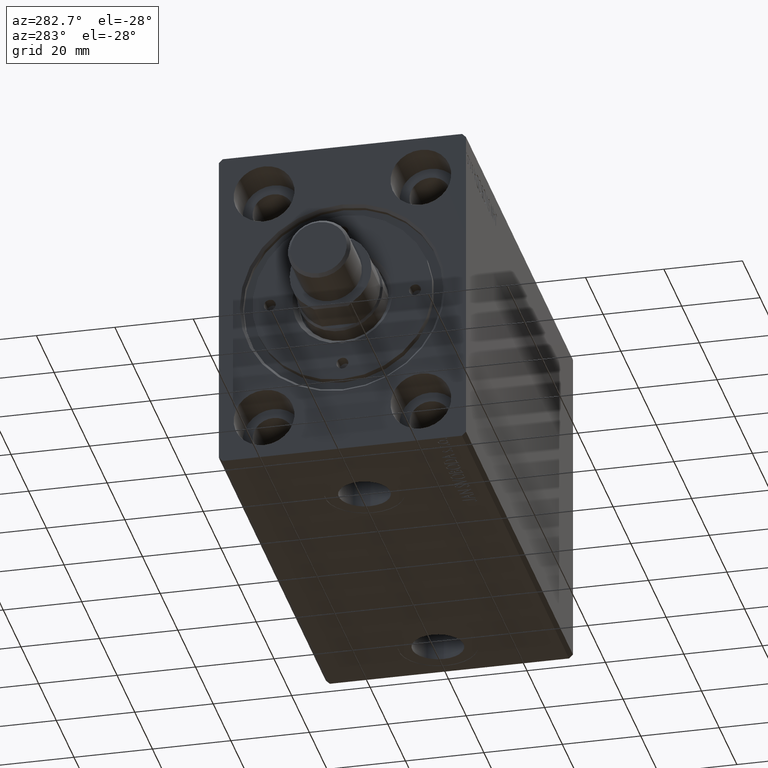
[diagram: clean part render]
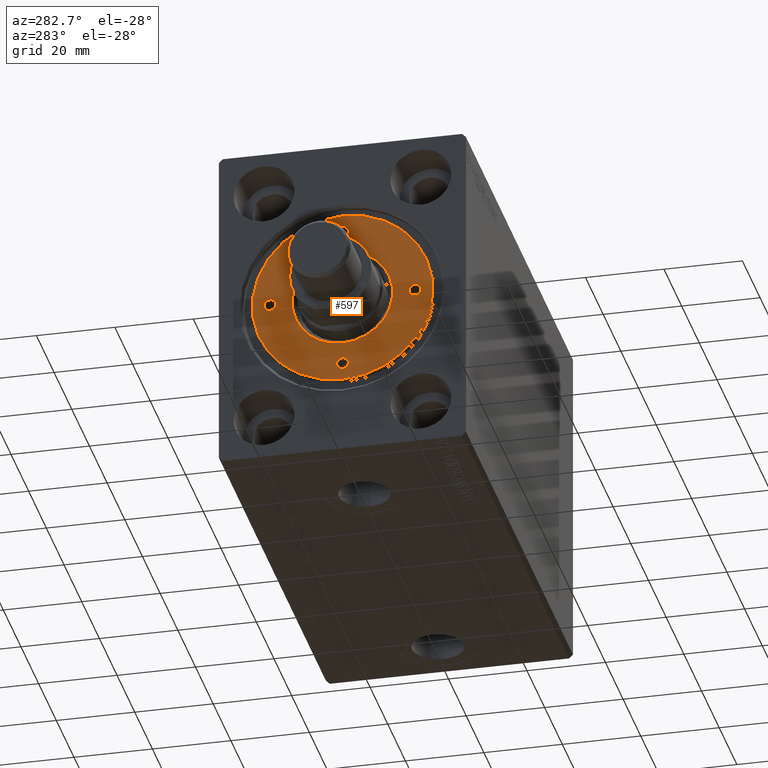
[diagram: same view with one face highlighted and labeled with its STEP entity id]
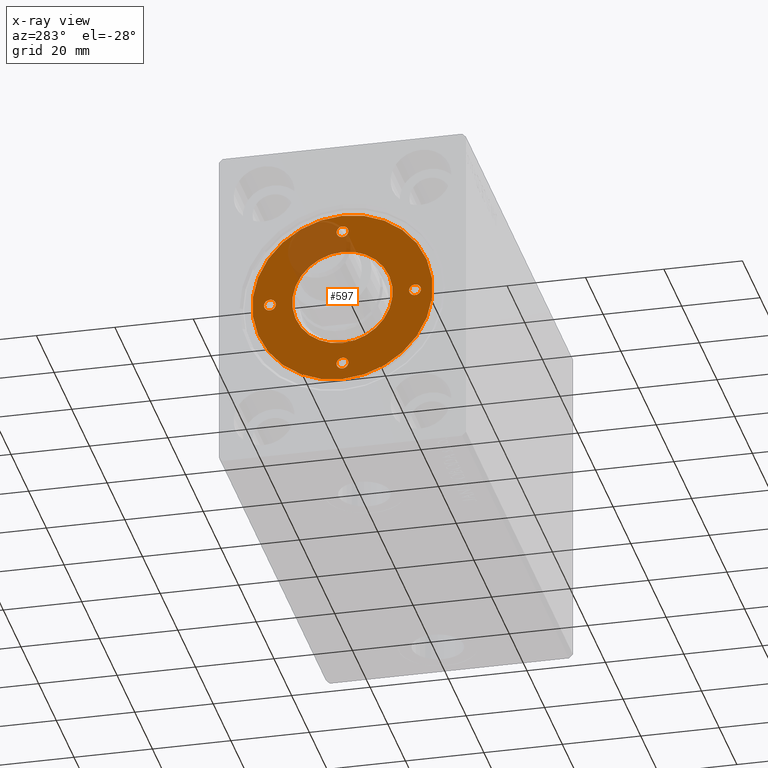
[diagram: x-ray of the same camera — body ghosted, the highlighted face saturated]
A machine part, auxiliary view. The second image highlights one B-rep face of the part: STEP entity #597.
The next image is the same camera in x-ray: the body ghosted, the highlighted face saturated — about 14% of this face is hidden behind the body in this view.
In plain terms, the highlighted planar face has unit normal (-1, 0, 0).
Its self-contained STEP definition (entity closure, byte-faithful):
#290 = EDGE_CURVE ( 'NONE', #16721, #43791, #33486, .T. ) ;
#294 = CARTESIAN_POINT ( 'NONE',  ( 19.99999999999999645, 0.000000000000000000, 11.79999999999999893 ) ) ;
#576 = VERTEX_POINT ( 'NONE', #26769 ) ;
#597 = ADVANCED_FACE ( 'NONE', ( #40709, #34166, #44309, #13497, #10117, #27204 ), #23834, .T. ) ;
#1057 = DIRECTION ( 'NONE',  ( 0.000000000000000000, 0.000000000000000000, 1.000000000000000000 ) ) ;
#1846 = CARTESIAN_POINT ( 'NONE',  ( 18.50000000000000000, 0.000000000000000000, 11.79999999999999893 ) ) ;
#2329 = CIRCLE ( 'NONE', #8090, 1.499999999999996891 ) ;
#3090 = EDGE_CURVE ( 'NONE', #7106, #6467, #29853, .T. ) ;
#3399 = CARTESIAN_POINT ( 'NONE',  ( -18.50000000000000000, 0.000000000000000000, 11.79999999999999893 ) ) ;
#3568 = AXIS2_PLACEMENT_3D ( 'NONE', #3399, #16220, #20470 ) ;
#3685 = ORIENTED_EDGE ( 'NONE', *, *, #38734, .F. ) ;
#3741 = CIRCLE ( 'NONE', #31749, 12.79999999999997407 ) ;
#4074 = DIRECTION ( 'NONE',  ( 1.000000000000000000, 0.000000000000000000, 0.000000000000000000 ) ) ;
#4100 = CIRCLE ( 'NONE', #43632, 23.00000000000000000 ) ;
#4816 = DIRECTION ( 'NONE',  ( 1.000000000000000000, 0.000000000000000000, 0.000000000000000000 ) ) ;
#5817 = ORIENTED_EDGE ( 'NONE', *, *, #13083, .F. ) ;
#5825 = VERTEX_POINT ( 'NONE', #15581 ) ;
#5912 = VERTEX_POINT ( 'NONE', #22753 ) ;
#6467 = VERTEX_POINT ( 'NONE', #16351 ) ;
#7065 = AXIS2_PLACEMENT_3D ( 'NONE', #25715, #18296, #4816 ) ;
#7106 = VERTEX_POINT ( 'NONE', #12156 ) ;
#7784 = CIRCLE ( 'NONE', #7065, 1.499999999999996891 ) ;
#8090 = AXIS2_PLACEMENT_3D ( 'NONE', #30405, #23654, #39381 ) ;
#8665 = CARTESIAN_POINT ( 'NONE',  ( 17.00000000000000000, 1.836970198721027222E-16, 11.79999999999999893 ) ) ;
#8823 = DIRECTION ( 'NONE',  ( -0.000000000000000000, -0.000000000000000000, 1.000000000000000000 ) ) ;
#8912 = EDGE_CURVE ( 'NONE', #24363, #5912, #7784, .T. ) ;
#9504 = ORIENTED_EDGE ( 'NONE', *, *, #39146, .F. ) ;
#9751 = EDGE_LOOP ( 'NONE', ( #10997, #23547 ) ) ;
#10117 = FACE_BOUND ( 'NONE', #19658, .T. ) ;
#10216 = CIRCLE ( 'NONE', #36793, 1.499999999999997780 ) ;
#10709 = ORIENTED_EDGE ( 'NONE', *, *, #44359, .T. ) ;
#10955 = CIRCLE ( 'NONE', #15999, 23.00000000000000000 ) ;
#10997 = ORIENTED_EDGE ( 'NONE', *, *, #38204, .F. ) ;
#11246 = CARTESIAN_POINT ( 'NONE',  ( 1.499999999999996891, -18.50000000000000000, 11.79999999999999893 ) ) ;
#12156 = CARTESIAN_POINT ( 'NONE',  ( -12.79999999999997407, 1.567547902908609029E-15, 11.79999999999999893 ) ) ;
#12351 = CIRCLE ( 'NONE', #38949, 1.499999999999996891 ) ;
#12571 = ORIENTED_EDGE ( 'NONE', *, *, #36099, .F. ) ;
#12743 = CARTESIAN_POINT ( 'NONE',  ( -1.499999999999996891, -18.50000000000000000, 11.79999999999999893 ) ) ;
#13083 = EDGE_CURVE ( 'NONE', #43791, #16721, #38771, .T. ) ;
#13187 = EDGE_CURVE ( 'NONE', #5825, #27137, #31569, .T. ) ;
#13497 = FACE_BOUND ( 'NONE', #33099, .T. ) ;
#13871 = ORIENTED_EDGE ( 'NONE', *, *, #290, .F. ) ;
#14094 = AXIS2_PLACEMENT_3D ( 'NONE', #28653, #36273, #15823 ) ;
#14591 = DIRECTION ( 'NONE',  ( -0.000000000000000000, -0.000000000000000000, 1.000000000000000000 ) ) ;
#15422 = DIRECTION ( 'NONE',  ( 1.000000000000000000, 0.000000000000000000, 0.000000000000000000 ) ) ;
#15581 = CARTESIAN_POINT ( 'NONE',  ( -19.99999999999999645, 1.836970198721027222E-16, 11.79999999999999893 ) ) ;
#15823 = DIRECTION ( 'NONE',  ( 1.000000000000000000, 0.000000000000000000, 0.000000000000000000 ) ) ;
#15880 = CARTESIAN_POINT ( 'NONE',  ( 0.000000000000000000, 0.000000000000000000, 11.79999999999999893 ) ) ;
#15999 = AXIS2_PLACEMENT_3D ( 'NONE', #15880, #43101, #23053 ) ;
#16220 = DIRECTION ( 'NONE',  ( -0.000000000000000000, -0.000000000000000000, 1.000000000000000000 ) ) ;
#16351 = CARTESIAN_POINT ( 'NONE',  ( 12.79999999999997407, 0.000000000000000000, 11.79999999999999893 ) ) ;
#16721 = VERTEX_POINT ( 'NONE', #294 ) ;
#17952 = DIRECTION ( 'NONE',  ( 1.000000000000000000, 0.000000000000000000, 0.000000000000000000 ) ) ;
#18174 = DIRECTION ( 'NONE',  ( 1.000000000000000000, 0.000000000000000000, 0.000000000000000000 ) ) ;
#18294 = EDGE_LOOP ( 'NONE', ( #13871, #5817 ) ) ;
#18296 = DIRECTION ( 'NONE',  ( -0.000000000000000000, -0.000000000000000000, 1.000000000000000000 ) ) ;
#19012 = EDGE_LOOP ( 'NONE', ( #3685, #37065 ) ) ;
#19421 = DIRECTION ( 'NONE',  ( 1.000000000000000000, 0.000000000000000000, 0.000000000000000000 ) ) ;
#19531 = ORIENTED_EDGE ( 'NONE', *, *, #20280, .T. ) ;
#19658 = EDGE_LOOP ( 'NONE', ( #20967, #22824 ) ) ;
#20280 = EDGE_CURVE ( 'NONE', #576, #29122, #4100, .T. ) ;
#20470 = DIRECTION ( 'NONE',  ( 1.000000000000000000, 0.000000000000000000, 0.000000000000000000 ) ) ;
#20703 = CARTESIAN_POINT ( 'NONE',  ( 0.000000000000000000, -18.50000000000000000, 11.79999999999999893 ) ) ;
#20967 = ORIENTED_EDGE ( 'NONE', *, *, #38200, .T. ) ;
#22226 = EDGE_LOOP ( 'NONE', ( #10709, #19531 ) ) ;
#22753 = CARTESIAN_POINT ( 'NONE',  ( 1.499999999999996891, 18.50000000000000000, 11.79999999999999893 ) ) ;
#22824 = ORIENTED_EDGE ( 'NONE', *, *, #3090, .T. ) ;
#23053 = DIRECTION ( 'NONE',  ( 1.000000000000000000, 0.000000000000000000, 0.000000000000000000 ) ) ;
#23458 = CARTESIAN_POINT ( 'NONE',  ( 0.000000000000000000, 0.000000000000000000, 11.79999999999999893 ) ) ;
#23547 = ORIENTED_EDGE ( 'NONE', *, *, #8912, .F. ) ;
#23654 = DIRECTION ( 'NONE',  ( -0.000000000000000000, -0.000000000000000000, 1.000000000000000000 ) ) ;
#23834 = PLANE ( 'NONE',  #34937 ) ;
#24105 = AXIS2_PLACEMENT_3D ( 'NONE', #23458, #36509, #19421 ) ;
#24363 = VERTEX_POINT ( 'NONE', #41684 ) ;
#24964 = CARTESIAN_POINT ( 'NONE',  ( -17.00000000000000000, 0.000000000000000000, 11.79999999999999893 ) ) ;
#25117 = AXIS2_PLACEMENT_3D ( 'NONE', #1846, #8823, #29503 ) ;
#25715 = CARTESIAN_POINT ( 'NONE',  ( 0.000000000000000000, 18.50000000000000000, 11.79999999999999893 ) ) ;
#26769 = CARTESIAN_POINT ( 'NONE',  ( 23.00000000000000000, 2.816687638038912352E-15, 11.79999999999999893 ) ) ;
#27134 = VERTEX_POINT ( 'NONE', #11246 ) ;
#27137 = VERTEX_POINT ( 'NONE', #24964 ) ;
#27204 = FACE_OUTER_BOUND ( 'NONE', #22226, .T. ) ;
#27420 = DIRECTION ( 'NONE',  ( 0.000000000000000000, 0.000000000000000000, 1.000000000000000000 ) ) ;
#27836 = CARTESIAN_POINT ( 'NONE',  ( 0.000000000000000000, 18.50000000000000000, 11.79999999999999893 ) ) ;
#28653 = CARTESIAN_POINT ( 'NONE',  ( 18.50000000000000000, 0.000000000000000000, 11.79999999999999893 ) ) ;
#28913 = DIRECTION ( 'NONE',  ( -0.000000000000000000, -0.000000000000000000, 1.000000000000000000 ) ) ;
#29122 = VERTEX_POINT ( 'NONE', #30574 ) ;
#29503 = DIRECTION ( 'NONE',  ( 1.000000000000000000, 0.000000000000000000, 0.000000000000000000 ) ) ;
#29853 = CIRCLE ( 'NONE', #24105, 12.79999999999997407 ) ;
#30405 = CARTESIAN_POINT ( 'NONE',  ( 0.000000000000000000, -18.50000000000000000, 11.79999999999999893 ) ) ;
#30574 = CARTESIAN_POINT ( 'NONE',  ( -23.00000000000000000, 0.000000000000000000, 11.79999999999999893 ) ) ;
#30991 = CIRCLE ( 'NONE', #36042, 1.499999999999996891 ) ;
#31569 = CIRCLE ( 'NONE', #3568, 1.499999999999997780 ) ;
#31749 = AXIS2_PLACEMENT_3D ( 'NONE', #41799, #41564, #17952 ) ;
#32065 = CARTESIAN_POINT ( 'NONE',  ( -18.50000000000000000, 0.000000000000000000, 11.79999999999999893 ) ) ;
#33099 = EDGE_LOOP ( 'NONE', ( #12571, #9504 ) ) ;
#33486 = CIRCLE ( 'NONE', #14094, 1.499999999999997780 ) ;
#34166 = FACE_BOUND ( 'NONE', #9751, .T. ) ;
#34390 = CARTESIAN_POINT ( 'NONE',  ( 0.000000000000000000, 0.000000000000000000, 11.79999999999999893 ) ) ;
#34532 = VERTEX_POINT ( 'NONE', #12743 ) ;
#34937 = AXIS2_PLACEMENT_3D ( 'NONE', #34390, #27420, #41148 ) ;
#35111 = DIRECTION ( 'NONE',  ( -0.000000000000000000, -0.000000000000000000, 1.000000000000000000 ) ) ;
#35243 = CARTESIAN_POINT ( 'NONE',  ( 0.000000000000000000, 0.000000000000000000, 11.79999999999999893 ) ) ;
#36042 = AXIS2_PLACEMENT_3D ( 'NONE', #20703, #35111, #4074 ) ;
#36099 = EDGE_CURVE ( 'NONE', #27134, #34532, #30991, .T. ) ;
#36273 = DIRECTION ( 'NONE',  ( -0.000000000000000000, -0.000000000000000000, 1.000000000000000000 ) ) ;
#36509 = DIRECTION ( 'NONE',  ( -0.000000000000000000, -0.000000000000000000, -1.000000000000000000 ) ) ;
#36793 = AXIS2_PLACEMENT_3D ( 'NONE', #32065, #28913, #15422 ) ;
#37065 = ORIENTED_EDGE ( 'NONE', *, *, #13187, .F. ) ;
#38200 = EDGE_CURVE ( 'NONE', #6467, #7106, #3741, .T. ) ;
#38204 = EDGE_CURVE ( 'NONE', #5912, #24363, #12351, .T. ) ;
#38734 = EDGE_CURVE ( 'NONE', #27137, #5825, #10216, .T. ) ;
#38771 = CIRCLE ( 'NONE', #25117, 1.499999999999997780 ) ;
#38949 = AXIS2_PLACEMENT_3D ( 'NONE', #27836, #14591, #18174 ) ;
#39146 = EDGE_CURVE ( 'NONE', #34532, #27134, #2329, .T. ) ;
#39381 = DIRECTION ( 'NONE',  ( 1.000000000000000000, 0.000000000000000000, 0.000000000000000000 ) ) ;
#40709 = FACE_BOUND ( 'NONE', #19012, .T. ) ;
#41148 = DIRECTION ( 'NONE',  ( 1.000000000000000000, 0.000000000000000000, -0.000000000000000000 ) ) ;
#41531 = DIRECTION ( 'NONE',  ( 1.000000000000000000, 0.000000000000000000, 0.000000000000000000 ) ) ;
#41564 = DIRECTION ( 'NONE',  ( -0.000000000000000000, -0.000000000000000000, -1.000000000000000000 ) ) ;
#41684 = CARTESIAN_POINT ( 'NONE',  ( -1.499999999999996891, 18.50000000000000000, 11.79999999999999893 ) ) ;
#41799 = CARTESIAN_POINT ( 'NONE',  ( 0.000000000000000000, 0.000000000000000000, 11.79999999999999893 ) ) ;
#43101 = DIRECTION ( 'NONE',  ( 0.000000000000000000, 0.000000000000000000, 1.000000000000000000 ) ) ;
#43632 = AXIS2_PLACEMENT_3D ( 'NONE', #35243, #1057, #41531 ) ;
#43791 = VERTEX_POINT ( 'NONE', #8665 ) ;
#44309 = FACE_BOUND ( 'NONE', #18294, .T. ) ;
#44359 = EDGE_CURVE ( 'NONE', #29122, #576, #10955, .T. ) ;